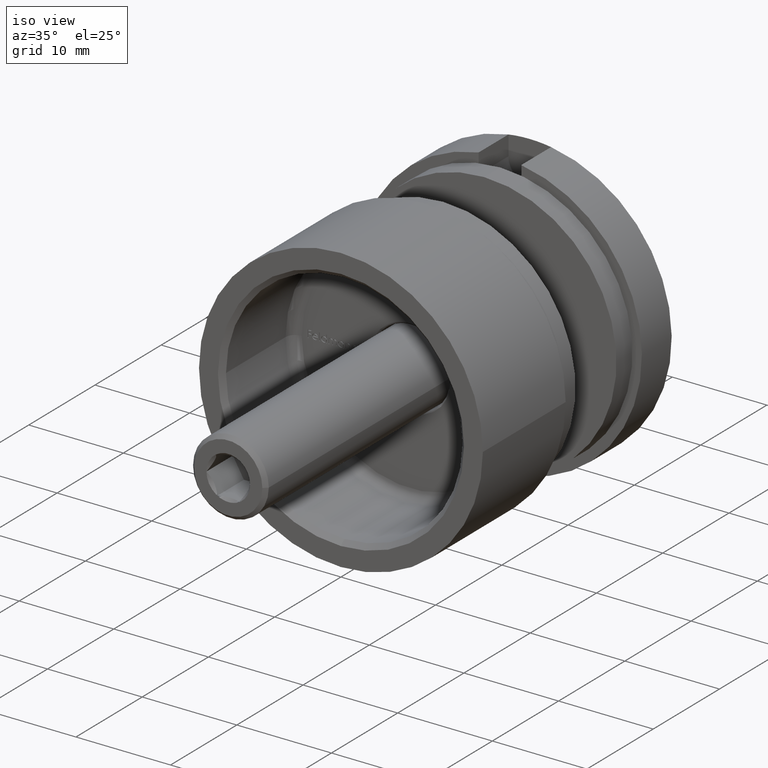
[diagram: clean part render]
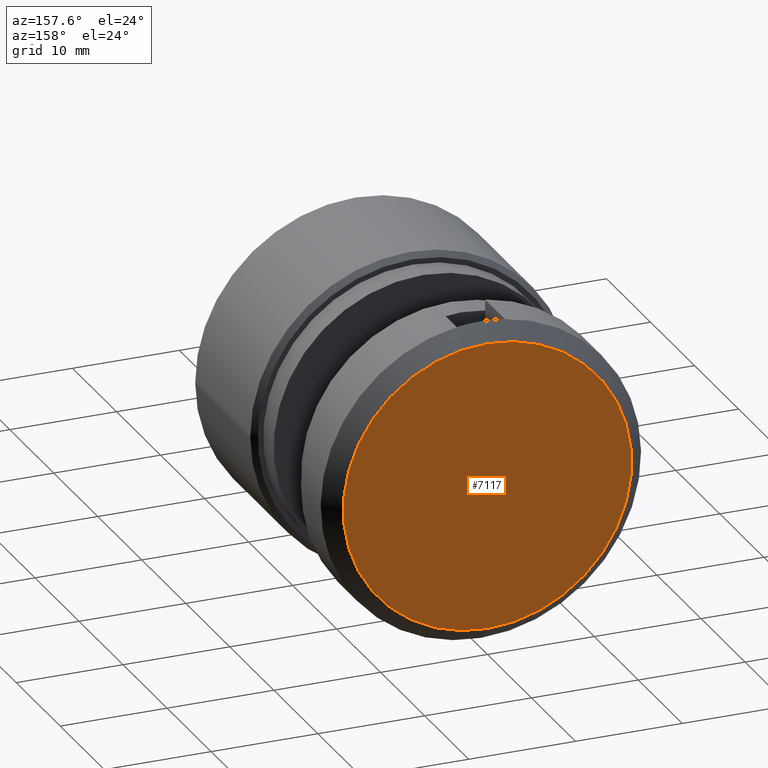
[diagram: tour spotlight — one face highlighted and labeled with its STEP entity id]
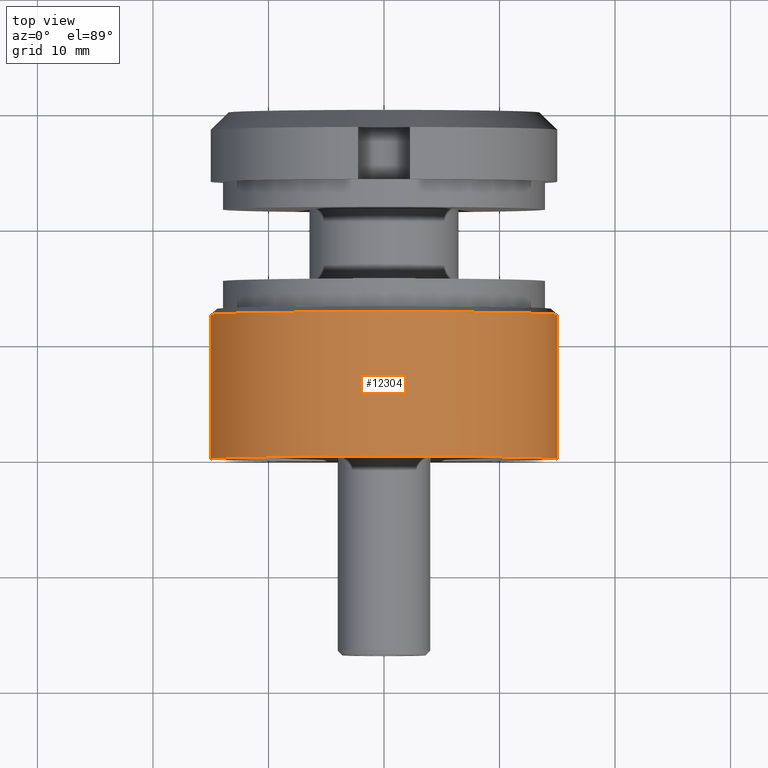
[diagram: tour spotlight — one face highlighted and labeled with its STEP entity id]
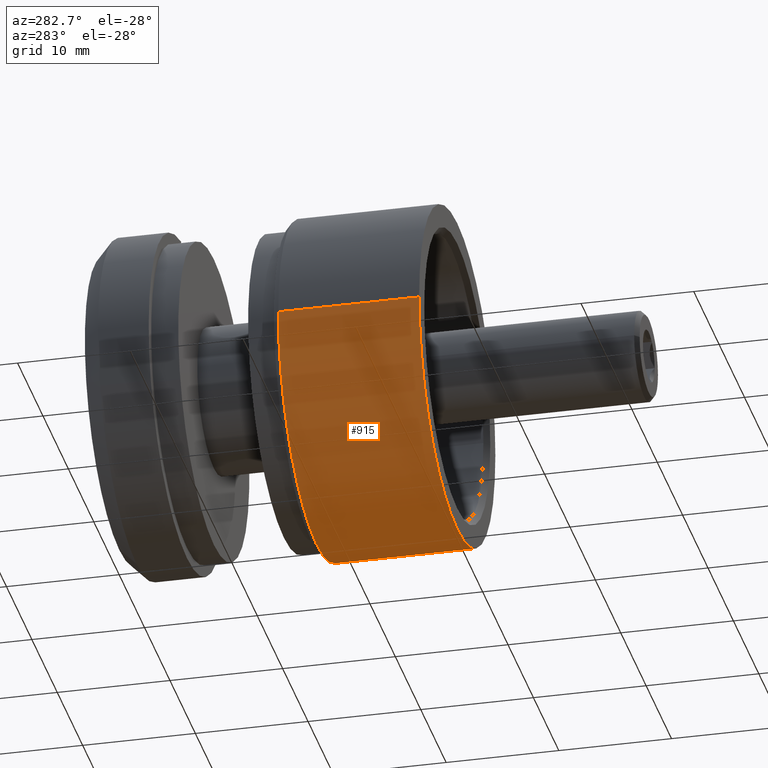
[diagram: tour spotlight — one face highlighted and labeled with its STEP entity id]
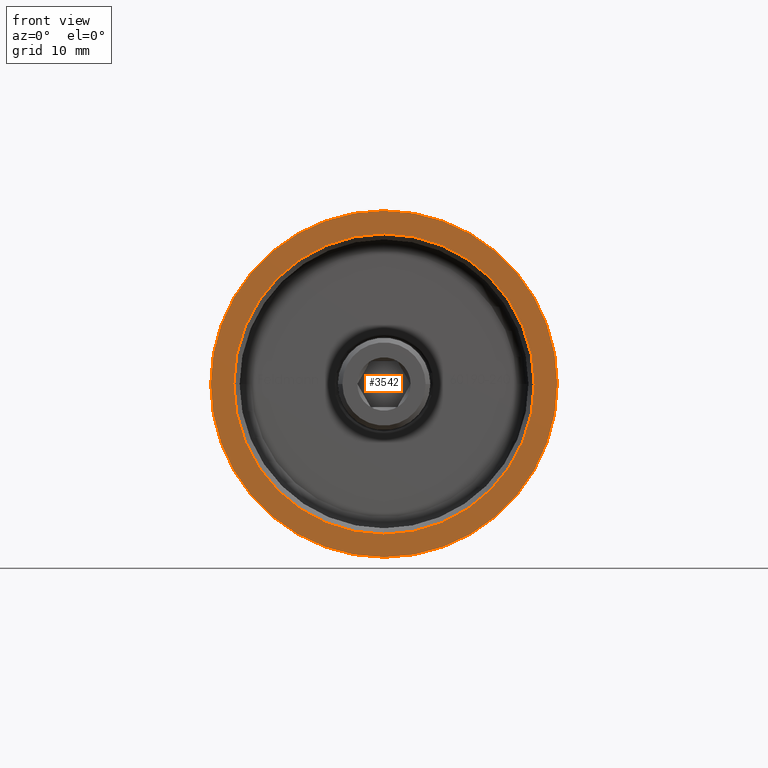
[diagram: tour spotlight — one face highlighted and labeled with its STEP entity id]
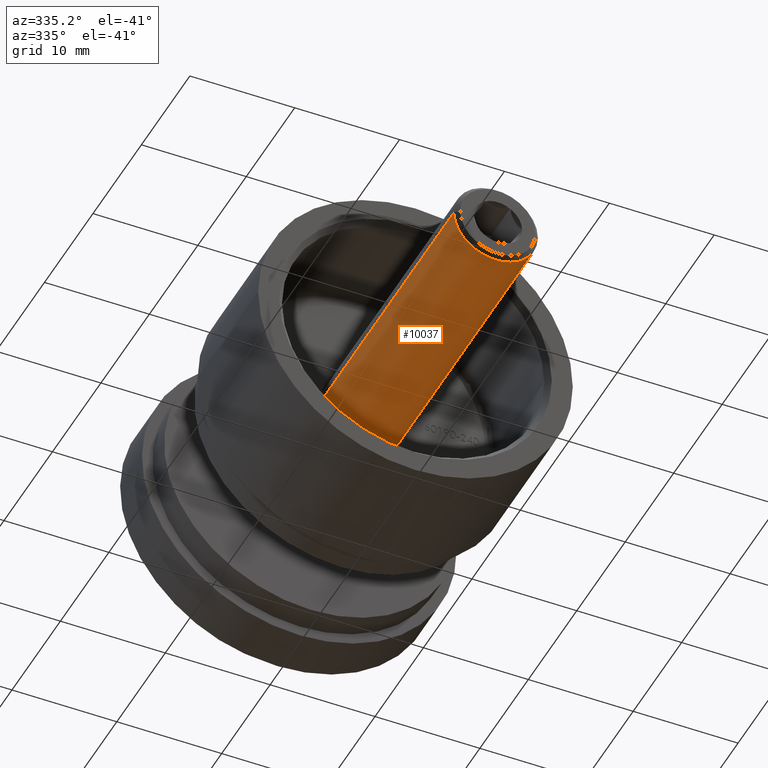
[diagram: tour spotlight — one face highlighted and labeled with its STEP entity id]
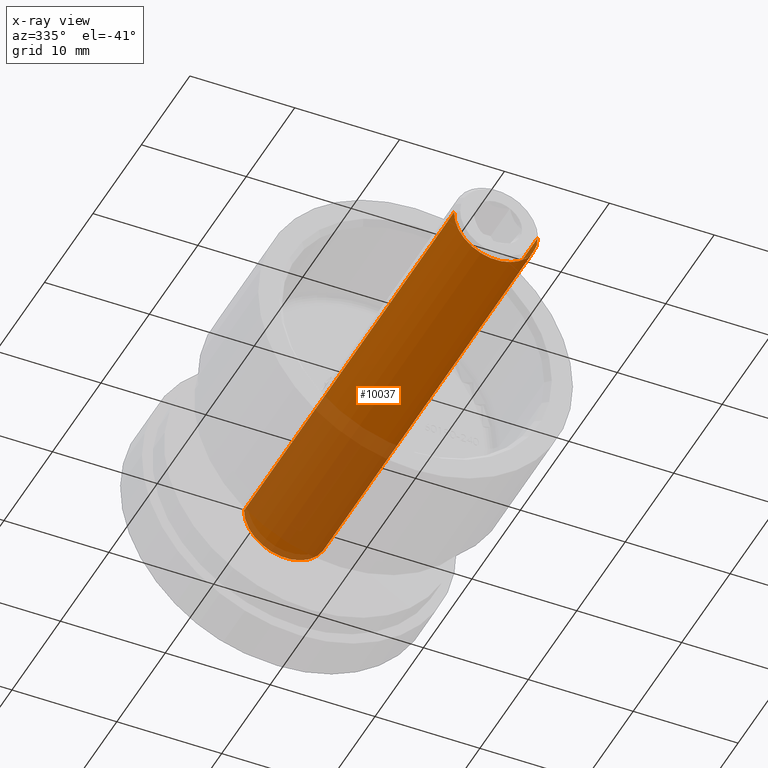
[diagram: x-ray of the same camera — body ghosted, this tour face saturated]
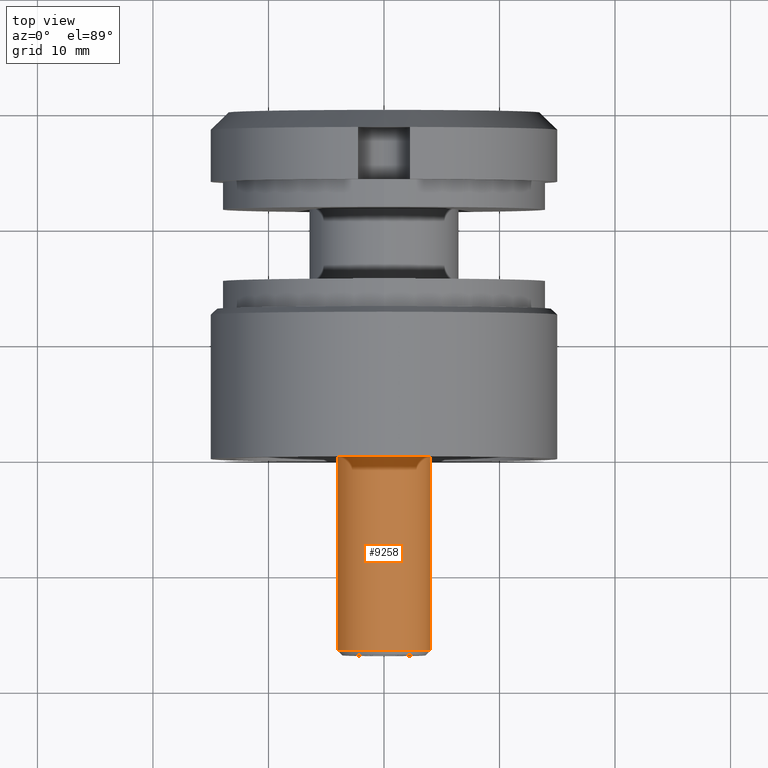
[diagram: tour spotlight — one face highlighted and labeled with its STEP entity id]
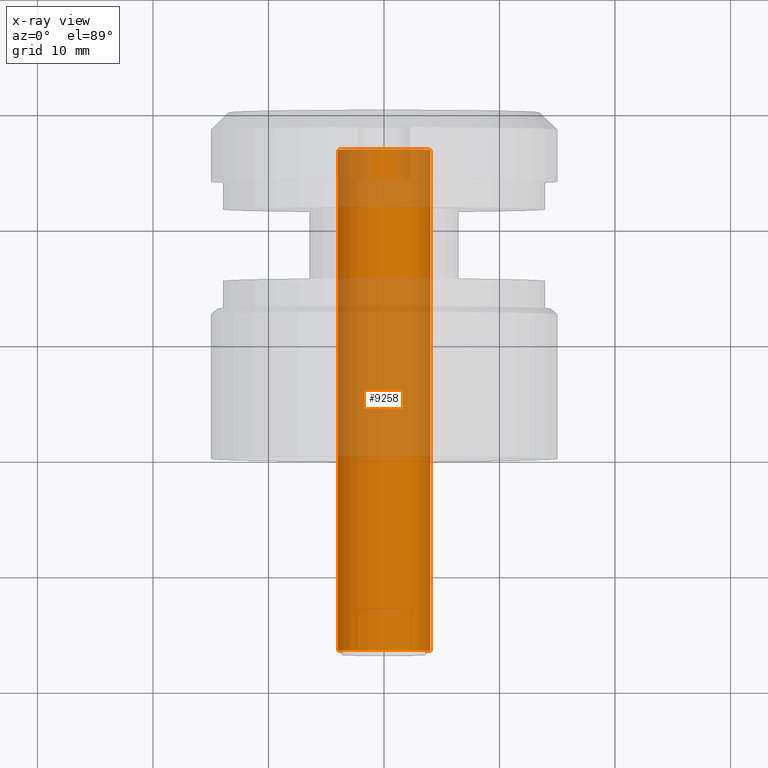
[diagram: x-ray of the same camera — body ghosted, this tour face saturated]
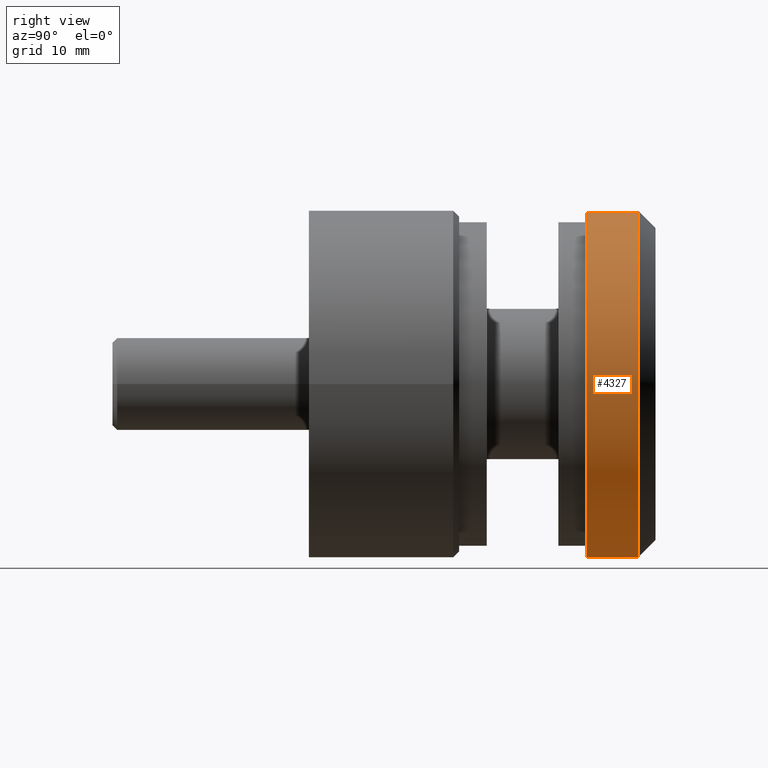
[diagram: tour spotlight — one face highlighted and labeled with its STEP entity id]
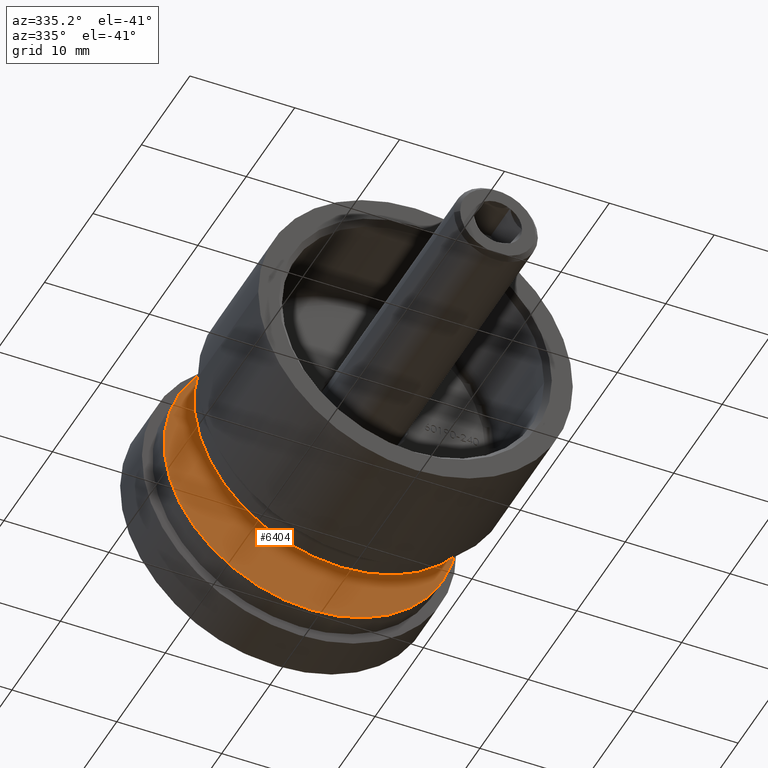
[diagram: tour spotlight — one face highlighted and labeled with its STEP entity id]
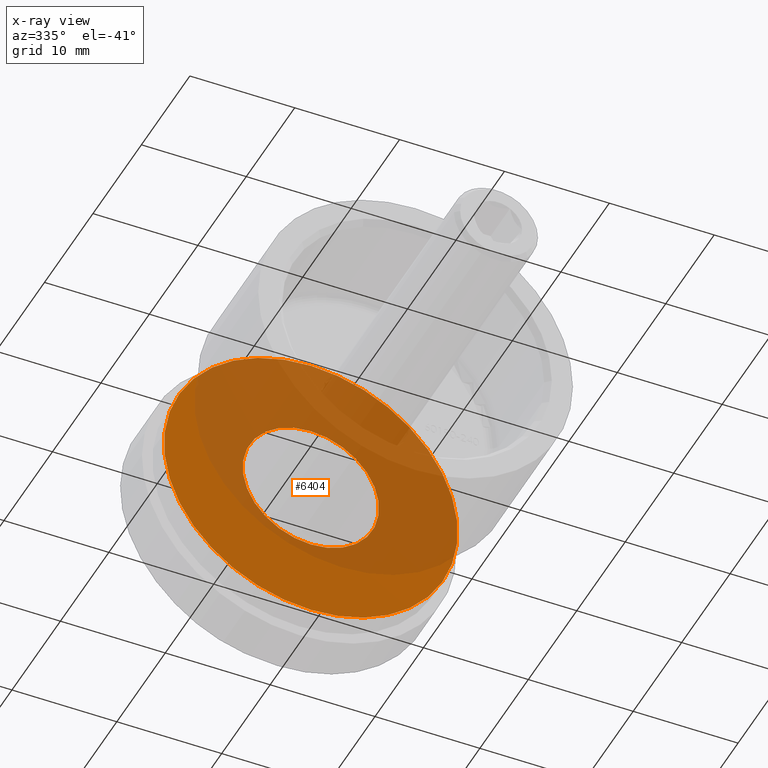
[diagram: x-ray of the same camera — body ghosted, this tour face saturated]
A machine part: a face-by-face anatomy tour. The part has 304 B-rep faces; the first image is the clean iso view, then the 8 largest visible faces are spotlighted one at a time (largest first), each with its STEP entity span.

Face 1 — auxiliary view, entity #7117. In plain terms, the highlighted planar face has unit normal (0, 1, 0).
Definition (entity closure, byte-faithful):
#291 = CARTESIAN_POINT ( 'NONE',  ( 0.000000000000000000, 11.00000000000000000, 0.000000000000000000 ) ) ;
#369 = CARTESIAN_POINT ( 'NONE',  ( 0.000000000000000000, 11.00000000000000000, -13.50000000000000000 ) ) ;
#1439 = DIRECTION ( 'NONE',  ( 0.000000000000000000, 0.000000000000000000, -1.000000000000000000 ) ) ;
#1816 = DIRECTION ( 'NONE',  ( 0.000000000000000000, 0.000000000000000000, -1.000000000000000000 ) ) ;
#1967 = ORIENTED_EDGE ( 'NONE', *, *, #12485, .F. ) ;
#2541 = AXIS2_PLACEMENT_3D ( 'NONE', #3973, #11365, #10179 ) ;
#2744 = DIRECTION ( 'NONE',  ( -0.000000000000000000, -1.000000000000000000, -0.000000000000000000 ) ) ;
#3588 = FACE_OUTER_BOUND ( 'NONE', #8136, .T. ) ;
#3737 = EDGE_CURVE ( 'NONE', #9612, #15301, #9376, .T. ) ;
#3973 = CARTESIAN_POINT ( 'NONE',  ( 0.000000000000000000, 11.00000000000000000, 0.000000000000000000 ) ) ;
#5408 = DIRECTION ( 'NONE',  ( -0.000000000000000000, -1.000000000000000000, -0.000000000000000000 ) ) ;
#5812 = AXIS2_PLACEMENT_3D ( 'NONE', #9158, #5408, #1816 ) ;
#5973 = AXIS2_PLACEMENT_3D ( 'NONE', #291, #2744, #1439 ) ;
#7117 = ADVANCED_FACE ( 'NONE', ( #3588 ), #8944, .T. ) ;
#7384 = ORIENTED_EDGE ( 'NONE', *, *, #3737, .F. ) ;
#8136 = EDGE_LOOP ( 'NONE', ( #7384, #1967 ) ) ;
#8944 = PLANE ( 'NONE',  #2541 ) ;
#9158 = CARTESIAN_POINT ( 'NONE',  ( 0.000000000000000000, 11.00000000000000000, 0.000000000000000000 ) ) ;
#9197 = CARTESIAN_POINT ( 'NONE',  ( 1.745121688784978228E-15, 11.00000000000000000, 13.50000000000000000 ) ) ;
#9376 = CIRCLE ( 'NONE', #5973, 13.50000000000000000 ) ;
#9612 = VERTEX_POINT ( 'NONE', #369 ) ;
#10179 = DIRECTION ( 'NONE',  ( 0.000000000000000000, -0.000000000000000000, 1.000000000000000000 ) ) ;
#11365 = DIRECTION ( 'NONE',  ( 0.000000000000000000, 1.000000000000000000, 0.000000000000000000 ) ) ;
#12485 = EDGE_CURVE ( 'NONE', #15301, #9612, #12567, .T. ) ;
#12567 = CIRCLE ( 'NONE', #5812, 13.50000000000000000 ) ;
#15301 = VERTEX_POINT ( 'NONE', #9197 ) ;

Face 2 — top view, entity #12304. In plain terms, the highlighted cylindrical surface (partial cylindrical patch) has radius 15 mm, axis along (-0, -1, -0).
Definition (entity closure, byte-faithful):
#44 = DIRECTION ( 'NONE',  ( 1.000000000000000000, 0.000000000000000000, 0.000000000000000000 ) ) ;
#145 = CARTESIAN_POINT ( 'NONE',  ( 15.00000000000000000, 12.50000000000000000, 0.000000000000000000 ) ) ;
#734 = ORIENTED_EDGE ( 'NONE', *, *, #10025, .T. ) ;
#1313 = VERTEX_POINT ( 'NONE', #145 ) ;
#1327 = ORIENTED_EDGE ( 'NONE', *, *, #15333, .F. ) ;
#1442 = CARTESIAN_POINT ( 'NONE',  ( -2.571758278209441267E-15, 12.50000000000000000, 0.000000000000000000 ) ) ;
#1489 = ORIENTED_EDGE ( 'NONE', *, *, #3445, .T. ) ;
#1516 = LINE ( 'NONE', #4039, #8699 ) ;
#1662 = EDGE_LOOP ( 'NONE', ( #1489, #734, #14394, #1327, #6943 ) ) ;
#1948 = DIRECTION ( 'NONE',  ( -1.650797095189058802E-31, -1.000000000000000000, -0.000000000000000000 ) ) ;
#2748 = DIRECTION ( 'NONE',  ( 0.000000000000000000, 0.000000000000000000, 1.000000000000000000 ) ) ;
#3445 = EDGE_CURVE ( 'NONE', #1313, #10052, #6715, .T. ) ;
#3571 = AXIS2_PLACEMENT_3D ( 'NONE', #10852, #12131, #44 ) ;
#3888 = VERTEX_POINT ( 'NONE', #12613 ) ;
#4039 = CARTESIAN_POINT ( 'NONE',  ( -15.00000000000000355, 10.49999999999999822, 1.836970198721029983E-15 ) ) ;
#4422 = CARTESIAN_POINT ( 'NONE',  ( -15.00000000000000355, 12.50000000000000000, 1.836970198721029983E-15 ) ) ;
#5162 = CYLINDRICAL_SURFACE ( 'NONE', #3571, 15.00000000000000178 ) ;
#6715 = CIRCLE ( 'NONE', #8885, 15.00000000000000178 ) ;
#6833 = DIRECTION ( 'NONE',  ( 1.000000000000000000, -1.650797095189058583E-31, 0.000000000000000000 ) ) ;
#6883 = CARTESIAN_POINT ( 'NONE',  ( -2.571758278209443239E-15, 0.000000000000000000, 0.000000000000000000 ) ) ;
#6943 = ORIENTED_EDGE ( 'NONE', *, *, #7573, .F. ) ;
#7407 = CARTESIAN_POINT ( 'NONE',  ( 15.00000000000000000, -2.476195642783588203E-30, 0.000000000000000000 ) ) ;
#7573 = EDGE_CURVE ( 'NONE', #1313, #12436, #9965, .T. ) ;
#7683 = VECTOR ( 'NONE', #1948, 1000.000000000000000 ) ;
#7808 = FACE_OUTER_BOUND ( 'NONE', #1662, .T. ) ;
#8337 = AXIS2_PLACEMENT_3D ( 'NONE', #1442, #8771, #2748 ) ;
#8699 = VECTOR ( 'NONE', #8912, 1000.000000000000000 ) ;
#8771 = DIRECTION ( 'NONE',  ( -0.000000000000000000, -1.000000000000000000, -0.000000000000000000 ) ) ;
#8885 = AXIS2_PLACEMENT_3D ( 'NONE', #10058, #14956, #8890 ) ;
#8890 = DIRECTION ( 'NONE',  ( -8.881784197001251337E-16, 0.000000000000000000, 1.000000000000000000 ) ) ;
#8912 = DIRECTION ( 'NONE',  ( -1.650797095189058802E-31, -1.000000000000000000, -0.000000000000000000 ) ) ;
#9300 = CIRCLE ( 'NONE', #8337, 15.00000000000000178 ) ;
#9965 = LINE ( 'NONE', #11623, #7683 ) ;
#10025 = EDGE_CURVE ( 'NONE', #10052, #12708, #9300, .T. ) ;
#10052 = VERTEX_POINT ( 'NONE', #14686 ) ;
#10058 = CARTESIAN_POINT ( 'NONE',  ( -2.571758278209441267E-15, 12.50000000000000000, 0.000000000000000000 ) ) ;
#10852 = CARTESIAN_POINT ( 'NONE',  ( -2.571758278209441661E-15, 10.49999999999999822, 0.000000000000000000 ) ) ;
#10989 = EDGE_CURVE ( 'NONE', #12708, #3888, #1516, .T. ) ;
#11623 = CARTESIAN_POINT ( 'NONE',  ( 15.00000000000000000, 10.49999999999999822, 0.000000000000000000 ) ) ;
#12131 = DIRECTION ( 'NONE',  ( -1.650797095189058802E-31, -1.000000000000000000, -0.000000000000000000 ) ) ;
#12304 = ADVANCED_FACE ( 'NONE', ( #7808 ), #5162, .T. ) ;
#12436 = VERTEX_POINT ( 'NONE', #7407 ) ;
#12613 = CARTESIAN_POINT ( 'NONE',  ( -15.00000000000000355, 2.476195642783588203E-30, 1.836970198721029983E-15 ) ) ;
#12708 = VERTEX_POINT ( 'NONE', #4422 ) ;
#14394 = ORIENTED_EDGE ( 'NONE', *, *, #10989, .T. ) ;
#14448 = CIRCLE ( 'NONE', #14744, 15.00000000000000178 ) ;
#14686 = CARTESIAN_POINT ( 'NONE',  ( -7.347880794884114806E-16, 12.50000000000000000, 15.00000000000000178 ) ) ;
#14744 = AXIS2_PLACEMENT_3D ( 'NONE', #6883, #15271, #6833 ) ;
#14956 = DIRECTION ( 'NONE',  ( -0.000000000000000000, -1.000000000000000000, -0.000000000000000000 ) ) ;
#15271 = DIRECTION ( 'NONE',  ( -1.650797095189058802E-31, -1.000000000000000000, -0.000000000000000000 ) ) ;
#15333 = EDGE_CURVE ( 'NONE', #12436, #3888, #14448, .T. ) ;

Face 3 — auxiliary view, entity #915. In plain terms, the highlighted cylindrical surface (partial cylindrical patch) has radius 15 mm, axis along (-0, -1, -0).
Definition (entity closure, byte-faithful):
#145 = CARTESIAN_POINT ( 'NONE',  ( 15.00000000000000000, 12.50000000000000000, 0.000000000000000000 ) ) ;
#915 = ADVANCED_FACE ( 'NONE', ( #3546 ), #10587, .T. ) ;
#1313 = VERTEX_POINT ( 'NONE', #145 ) ;
#1440 = CARTESIAN_POINT ( 'NONE',  ( -2.571758278209441267E-15, 12.50000000000000000, 0.000000000000000000 ) ) ;
#1516 = LINE ( 'NONE', #4039, #8699 ) ;
#1948 = DIRECTION ( 'NONE',  ( -1.650797095189058802E-31, -1.000000000000000000, -0.000000000000000000 ) ) ;
#2849 = CIRCLE ( 'NONE', #5490, 15.00000000000000178 ) ;
#3546 = FACE_OUTER_BOUND ( 'NONE', #13096, .T. ) ;
#3580 = ORIENTED_EDGE ( 'NONE', *, *, #10989, .F. ) ;
#3888 = VERTEX_POINT ( 'NONE', #12613 ) ;
#4039 = CARTESIAN_POINT ( 'NONE',  ( -15.00000000000000355, 10.49999999999999822, 1.836970198721029983E-15 ) ) ;
#4422 = CARTESIAN_POINT ( 'NONE',  ( -15.00000000000000355, 12.50000000000000000, 1.836970198721029983E-15 ) ) ;
#4505 = VERTEX_POINT ( 'NONE', #5909 ) ;
#4677 = AXIS2_PLACEMENT_3D ( 'NONE', #10538, #12930, #10419 ) ;
#5169 = DIRECTION ( 'NONE',  ( -0.000000000000000000, -1.000000000000000000, -0.000000000000000000 ) ) ;
#5490 = AXIS2_PLACEMENT_3D ( 'NONE', #1440, #5169, #12501 ) ;
#5909 = CARTESIAN_POINT ( 'NONE',  ( -2.571758278209441267E-15, 12.50000000000000000, -15.00000000000000178 ) ) ;
#7309 = DIRECTION ( 'NONE',  ( -0.000000000000000000, -1.000000000000000000, -0.000000000000000000 ) ) ;
#7407 = CARTESIAN_POINT ( 'NONE',  ( 15.00000000000000000, -2.476195642783588203E-30, 0.000000000000000000 ) ) ;
#7573 = EDGE_CURVE ( 'NONE', #1313, #12436, #9965, .T. ) ;
#7683 = VECTOR ( 'NONE', #1948, 1000.000000000000000 ) ;
#7815 = CIRCLE ( 'NONE', #4677, 15.00000000000000178 ) ;
#7971 = AXIS2_PLACEMENT_3D ( 'NONE', #15646, #13311, #8459 ) ;
#8260 = EDGE_CURVE ( 'NONE', #3888, #12436, #7815, .T. ) ;
#8459 = DIRECTION ( 'NONE',  ( 1.000000000000000000, 0.000000000000000000, 0.000000000000000000 ) ) ;
#8699 = VECTOR ( 'NONE', #8912, 1000.000000000000000 ) ;
#8727 = AXIS2_PLACEMENT_3D ( 'NONE', #13443, #7309, #10957 ) ;
#8912 = DIRECTION ( 'NONE',  ( -1.650797095189058802E-31, -1.000000000000000000, -0.000000000000000000 ) ) ;
#9965 = LINE ( 'NONE', #11623, #7683 ) ;
#10419 = DIRECTION ( 'NONE',  ( 1.000000000000000000, -1.650797095189058583E-31, 0.000000000000000000 ) ) ;
#10538 = CARTESIAN_POINT ( 'NONE',  ( -2.571758278209443239E-15, 0.000000000000000000, 0.000000000000000000 ) ) ;
#10587 = CYLINDRICAL_SURFACE ( 'NONE', #7971, 15.00000000000000178 ) ;
#10860 = CIRCLE ( 'NONE', #8727, 15.00000000000000178 ) ;
#10957 = DIRECTION ( 'NONE',  ( 0.000000000000000000, 0.000000000000000000, 1.000000000000000000 ) ) ;
#10989 = EDGE_CURVE ( 'NONE', #12708, #3888, #1516, .T. ) ;
#11350 = ORIENTED_EDGE ( 'NONE', *, *, #8260, .F. ) ;
#11623 = CARTESIAN_POINT ( 'NONE',  ( 15.00000000000000000, 10.49999999999999822, 0.000000000000000000 ) ) ;
#11990 = ORIENTED_EDGE ( 'NONE', *, *, #7573, .T. ) ;
#12436 = VERTEX_POINT ( 'NONE', #7407 ) ;
#12501 = DIRECTION ( 'NONE',  ( 0.000000000000000000, 0.000000000000000000, 1.000000000000000000 ) ) ;
#12613 = CARTESIAN_POINT ( 'NONE',  ( -15.00000000000000355, 2.476195642783588203E-30, 1.836970198721029983E-15 ) ) ;
#12708 = VERTEX_POINT ( 'NONE', #4422 ) ;
#12796 = ORIENTED_EDGE ( 'NONE', *, *, #14421, .T. ) ;
#12930 = DIRECTION ( 'NONE',  ( -1.650797095189058802E-31, -1.000000000000000000, -0.000000000000000000 ) ) ;
#13096 = EDGE_LOOP ( 'NONE', ( #3580, #15100, #12796, #11990, #11350 ) ) ;
#13311 = DIRECTION ( 'NONE',  ( -1.650797095189058802E-31, -1.000000000000000000, -0.000000000000000000 ) ) ;
#13443 = CARTESIAN_POINT ( 'NONE',  ( -2.571758278209441267E-15, 12.50000000000000000, 0.000000000000000000 ) ) ;
#14421 = EDGE_CURVE ( 'NONE', #4505, #1313, #2849, .T. ) ;
#15100 = ORIENTED_EDGE ( 'NONE', *, *, #15546, .T. ) ;
#15546 = EDGE_CURVE ( 'NONE', #12708, #4505, #10860, .T. ) ;
#15646 = CARTESIAN_POINT ( 'NONE',  ( -2.571758278209441661E-15, 10.49999999999999822, 0.000000000000000000 ) ) ;

Face 4 — front view, entity #3542. In plain terms, the highlighted planar face has unit normal (-0, -1, 0).
Definition (entity closure, byte-faithful):
#971 = PLANE ( 'NONE',  #10001 ) ;
#1081 = DIRECTION ( 'NONE',  ( -1.650797095189058802E-31, -1.000000000000000000, 0.000000000000000000 ) ) ;
#3507 = DIRECTION ( 'NONE',  ( 1.000000000000000000, -1.650797095189058802E-31, 0.000000000000000000 ) ) ;
#3542 = ADVANCED_FACE ( 'NONE', ( #11485, #7095 ), #971, .T. ) ;
#3888 = VERTEX_POINT ( 'NONE', #12613 ) ;
#4677 = AXIS2_PLACEMENT_3D ( 'NONE', #10538, #12930, #10419 ) ;
#5664 = DIRECTION ( 'NONE',  ( 1.650797095189058802E-31, 1.000000000000000000, 0.000000000000000000 ) ) ;
#6016 = AXIS2_PLACEMENT_3D ( 'NONE', #10668, #5664, #15491 ) ;
#6549 = CARTESIAN_POINT ( 'NONE',  ( -2.571758278209443239E-15, -1.530808498934169384E-16, 0.000000000000000000 ) ) ;
#6833 = DIRECTION ( 'NONE',  ( 1.000000000000000000, -1.650797095189058583E-31, 0.000000000000000000 ) ) ;
#6883 = CARTESIAN_POINT ( 'NONE',  ( -2.571758278209443239E-15, 0.000000000000000000, 0.000000000000000000 ) ) ;
#7086 = CARTESIAN_POINT ( 'NONE',  ( -2.571758278209443239E-15, -1.530808498934169384E-16, -13.00000000000001066 ) ) ;
#7095 = FACE_OUTER_BOUND ( 'NONE', #10605, .T. ) ;
#7407 = CARTESIAN_POINT ( 'NONE',  ( 15.00000000000000000, -2.476195642783588203E-30, 0.000000000000000000 ) ) ;
#7486 = VERTEX_POINT ( 'NONE', #12359 ) ;
#7487 = EDGE_CURVE ( 'NONE', #7486, #9449, #8461, .T. ) ;
#7815 = CIRCLE ( 'NONE', #4677, 15.00000000000000178 ) ;
#8260 = EDGE_CURVE ( 'NONE', #3888, #12436, #7815, .T. ) ;
#8461 = CIRCLE ( 'NONE', #10350, 13.00000000000001066 ) ;
#9432 = CARTESIAN_POINT ( 'NONE',  ( 15.00000000000000000, -1.530808498934194036E-16, 0.000000000000000000 ) ) ;
#9449 = VERTEX_POINT ( 'NONE', #7086 ) ;
#10001 = AXIS2_PLACEMENT_3D ( 'NONE', #9432, #1081, #3507 ) ;
#10350 = AXIS2_PLACEMENT_3D ( 'NONE', #6549, #15045, #13771 ) ;
#10419 = DIRECTION ( 'NONE',  ( 1.000000000000000000, -1.650797095189058583E-31, 0.000000000000000000 ) ) ;
#10538 = CARTESIAN_POINT ( 'NONE',  ( -2.571758278209443239E-15, 0.000000000000000000, 0.000000000000000000 ) ) ;
#10605 = EDGE_LOOP ( 'NONE', ( #14487, #10976 ) ) ;
#10668 = CARTESIAN_POINT ( 'NONE',  ( -2.571758278209443239E-15, -1.530808498934169384E-16, 0.000000000000000000 ) ) ;
#10847 = ORIENTED_EDGE ( 'NONE', *, *, #15237, .T. ) ;
#10976 = ORIENTED_EDGE ( 'NONE', *, *, #8260, .T. ) ;
#11485 = FACE_BOUND ( 'NONE', #14404, .T. ) ;
#12359 = CARTESIAN_POINT ( 'NONE',  ( -9.797174393178827630E-16, -1.530808498934169384E-16, 13.00000000000001066 ) ) ;
#12436 = VERTEX_POINT ( 'NONE', #7407 ) ;
#12613 = CARTESIAN_POINT ( 'NONE',  ( -15.00000000000000355, 2.476195642783588203E-30, 1.836970198721029983E-15 ) ) ;
#12930 = DIRECTION ( 'NONE',  ( -1.650797095189058802E-31, -1.000000000000000000, -0.000000000000000000 ) ) ;
#13771 = DIRECTION ( 'NONE',  ( 1.000000000000000000, -1.648151587023690806E-31, 0.000000000000000000 ) ) ;
#14404 = EDGE_LOOP ( 'NONE', ( #10847, #14422 ) ) ;
#14422 = ORIENTED_EDGE ( 'NONE', *, *, #7487, .T. ) ;
#14448 = CIRCLE ( 'NONE', #14744, 15.00000000000000178 ) ;
#14487 = ORIENTED_EDGE ( 'NONE', *, *, #15333, .T. ) ;
#14744 = AXIS2_PLACEMENT_3D ( 'NONE', #6883, #15271, #6833 ) ;
#14823 = CIRCLE ( 'NONE', #6016, 13.00000000000001066 ) ;
#15045 = DIRECTION ( 'NONE',  ( 1.650797095189058802E-31, 1.000000000000000000, 0.000000000000000000 ) ) ;
#15237 = EDGE_CURVE ( 'NONE', #9449, #7486, #14823, .T. ) ;
#15271 = DIRECTION ( 'NONE',  ( -1.650797095189058802E-31, -1.000000000000000000, -0.000000000000000000 ) ) ;
#15333 = EDGE_CURVE ( 'NONE', #12436, #3888, #14448, .T. ) ;
#15491 = DIRECTION ( 'NONE',  ( 1.000000000000000000, -1.648151587023690806E-31, 0.000000000000000000 ) ) ;

Face 5 — auxiliary view, entity #10037. An x-ray twin of the same camera follows (body ghosted, this face saturated) — the face is partly hidden behind the body. In plain terms, the highlighted cylindrical surface (partial cylindrical patch) has radius 4 mm, axis along (0, -1, 0).
Definition (entity closure, byte-faithful):
#244 = CARTESIAN_POINT ( 'NONE',  ( 4.000000000000000000, 0.000000000000000000, -43.75000000000000711 ) ) ;
#497 = AXIS2_PLACEMENT_3D ( 'NONE', #14480, #1142, #4738 ) ;
#1142 = DIRECTION ( 'NONE',  ( -0.000000000000000000, -0.000000000000000000, 1.000000000000000000 ) ) ;
#1206 = ORIENTED_EDGE ( 'NONE', *, *, #2629, .T. ) ;
#2023 = EDGE_CURVE ( 'NONE', #11258, #11223, #2160, .T. ) ;
#2160 = LINE ( 'NONE', #14299, #14837 ) ;
#2338 = VECTOR ( 'NONE', #12055, 1000.000000000000000 ) ;
#2625 = ORIENTED_EDGE ( 'NONE', *, *, #9823, .T. ) ;
#2629 = EDGE_CURVE ( 'NONE', #7428, #8122, #12384, .T. ) ;
#2793 = ORIENTED_EDGE ( 'NONE', *, *, #2023, .F. ) ;
#2929 = AXIS2_PLACEMENT_3D ( 'NONE', #14886, #7446, #12360 ) ;
#3249 = CYLINDRICAL_SURFACE ( 'NONE', #2929, 4.000000000000000000 ) ;
#3790 = CIRCLE ( 'NONE', #497, 4.000000000000000000 ) ;
#4738 = DIRECTION ( 'NONE',  ( 1.000000000000000000, 0.000000000000000000, 0.000000000000000000 ) ) ;
#5533 = CARTESIAN_POINT ( 'NONE',  ( -4.000000000000000000, 4.898587196589412829E-16, -43.75000000000000711 ) ) ;
#6539 = CARTESIAN_POINT ( 'NONE',  ( 0.000000000000000000, 0.000000000000000000, -0.4000000000000019651 ) ) ;
#7140 = CARTESIAN_POINT ( 'NONE',  ( 4.000000000000000000, 0.000000000000000000, 0.000000000000000000 ) ) ;
#7428 = VERTEX_POINT ( 'NONE', #244 ) ;
#7446 = DIRECTION ( 'NONE',  ( -0.000000000000000000, -0.000000000000000000, 1.000000000000000000 ) ) ;
#8022 = AXIS2_PLACEMENT_3D ( 'NONE', #6539, #12542, #12443 ) ;
#8122 = VERTEX_POINT ( 'NONE', #12294 ) ;
#8314 = CIRCLE ( 'NONE', #8022, 4.000000000000000000 ) ;
#9823 = EDGE_CURVE ( 'NONE', #11258, #7428, #3790, .T. ) ;
#10037 = ADVANCED_FACE ( 'NONE', ( #15584 ), #3249, .T. ) ;
#11140 = EDGE_CURVE ( 'NONE', #8122, #11223, #8314, .T. ) ;
#11223 = VERTEX_POINT ( 'NONE', #13927 ) ;
#11258 = VERTEX_POINT ( 'NONE', #5533 ) ;
#11777 = DIRECTION ( 'NONE',  ( -0.000000000000000000, -0.000000000000000000, 1.000000000000000000 ) ) ;
#12055 = DIRECTION ( 'NONE',  ( -0.000000000000000000, -0.000000000000000000, 1.000000000000000000 ) ) ;
#12294 = CARTESIAN_POINT ( 'NONE',  ( 4.000000000000000000, 0.000000000000000000, -0.4000000000000019651 ) ) ;
#12360 = DIRECTION ( 'NONE',  ( 1.000000000000000000, 0.000000000000000000, 0.000000000000000000 ) ) ;
#12384 = LINE ( 'NONE', #7140, #2338 ) ;
#12443 = DIRECTION ( 'NONE',  ( -1.000000000000000000, 0.000000000000000000, 0.000000000000000000 ) ) ;
#12542 = DIRECTION ( 'NONE',  ( 0.000000000000000000, 0.000000000000000000, -1.000000000000000000 ) ) ;
#13224 = EDGE_LOOP ( 'NONE', ( #2793, #2625, #1206, #14499 ) ) ;
#13927 = CARTESIAN_POINT ( 'NONE',  ( -4.000000000000000000, 4.898587196589412829E-16, -0.4000000000000019651 ) ) ;
#14299 = CARTESIAN_POINT ( 'NONE',  ( -4.000000000000000000, 4.898587196589412829E-16, 0.000000000000000000 ) ) ;
#14480 = CARTESIAN_POINT ( 'NONE',  ( 0.000000000000000000, 0.000000000000000000, -43.75000000000000711 ) ) ;
#14499 = ORIENTED_EDGE ( 'NONE', *, *, #11140, .T. ) ;
#14837 = VECTOR ( 'NONE', #11777, 1000.000000000000000 ) ;
#14886 = CARTESIAN_POINT ( 'NONE',  ( 0.000000000000000000, 0.000000000000000000, 0.000000000000000000 ) ) ;
#15584 = FACE_OUTER_BOUND ( 'NONE', #13224, .T. ) ;

Face 6 — top view, entity #9258. An x-ray twin of the same camera follows (body ghosted, this face saturated) — the face is partly hidden behind the body. In plain terms, the highlighted cylindrical surface (partial cylindrical patch) has radius 4 mm, axis along (0, -1, 0).
Definition (entity closure, byte-faithful):
#31 = DIRECTION ( 'NONE',  ( 0.000000000000000000, 0.000000000000000000, -1.000000000000000000 ) ) ;
#244 = CARTESIAN_POINT ( 'NONE',  ( 4.000000000000000000, 0.000000000000000000, -43.75000000000000711 ) ) ;
#2023 = EDGE_CURVE ( 'NONE', #11258, #11223, #2160, .T. ) ;
#2160 = LINE ( 'NONE', #14299, #14837 ) ;
#2338 = VECTOR ( 'NONE', #12055, 1000.000000000000000 ) ;
#2629 = EDGE_CURVE ( 'NONE', #7428, #8122, #12384, .T. ) ;
#2632 = DIRECTION ( 'NONE',  ( 1.000000000000000000, 0.000000000000000000, 0.000000000000000000 ) ) ;
#5396 = DIRECTION ( 'NONE',  ( 1.000000000000000000, 0.000000000000000000, 0.000000000000000000 ) ) ;
#5533 = CARTESIAN_POINT ( 'NONE',  ( -4.000000000000000000, 4.898587196589412829E-16, -43.75000000000000711 ) ) ;
#5581 = FACE_OUTER_BOUND ( 'NONE', #6175, .T. ) ;
#5638 = EDGE_CURVE ( 'NONE', #11223, #8122, #10385, .T. ) ;
#6046 = DIRECTION ( 'NONE',  ( -1.000000000000000000, 0.000000000000000000, 0.000000000000000000 ) ) ;
#6175 = EDGE_LOOP ( 'NONE', ( #9355, #9792, #15359, #8111 ) ) ;
#6280 = DIRECTION ( 'NONE',  ( -0.000000000000000000, -0.000000000000000000, 1.000000000000000000 ) ) ;
#7140 = CARTESIAN_POINT ( 'NONE',  ( 4.000000000000000000, 0.000000000000000000, 0.000000000000000000 ) ) ;
#7428 = VERTEX_POINT ( 'NONE', #244 ) ;
#8111 = ORIENTED_EDGE ( 'NONE', *, *, #2629, .F. ) ;
#8122 = VERTEX_POINT ( 'NONE', #12294 ) ;
#8728 = CIRCLE ( 'NONE', #11192, 4.000000000000000000 ) ;
#9258 = ADVANCED_FACE ( 'NONE', ( #5581 ), #15056, .T. ) ;
#9355 = ORIENTED_EDGE ( 'NONE', *, *, #13984, .T. ) ;
#9792 = ORIENTED_EDGE ( 'NONE', *, *, #2023, .T. ) ;
#10249 = AXIS2_PLACEMENT_3D ( 'NONE', #11458, #12894, #5396 ) ;
#10385 = CIRCLE ( 'NONE', #12383, 4.000000000000000000 ) ;
#11011 = CARTESIAN_POINT ( 'NONE',  ( 0.000000000000000000, 0.000000000000000000, -43.75000000000000711 ) ) ;
#11192 = AXIS2_PLACEMENT_3D ( 'NONE', #11011, #6280, #2632 ) ;
#11223 = VERTEX_POINT ( 'NONE', #13927 ) ;
#11258 = VERTEX_POINT ( 'NONE', #5533 ) ;
#11458 = CARTESIAN_POINT ( 'NONE',  ( 0.000000000000000000, 0.000000000000000000, 0.000000000000000000 ) ) ;
#11777 = DIRECTION ( 'NONE',  ( -0.000000000000000000, -0.000000000000000000, 1.000000000000000000 ) ) ;
#12055 = DIRECTION ( 'NONE',  ( -0.000000000000000000, -0.000000000000000000, 1.000000000000000000 ) ) ;
#12294 = CARTESIAN_POINT ( 'NONE',  ( 4.000000000000000000, 0.000000000000000000, -0.4000000000000019651 ) ) ;
#12383 = AXIS2_PLACEMENT_3D ( 'NONE', #13326, #31, #6046 ) ;
#12384 = LINE ( 'NONE', #7140, #2338 ) ;
#12894 = DIRECTION ( 'NONE',  ( -0.000000000000000000, -0.000000000000000000, 1.000000000000000000 ) ) ;
#13326 = CARTESIAN_POINT ( 'NONE',  ( 0.000000000000000000, 0.000000000000000000, -0.4000000000000019651 ) ) ;
#13927 = CARTESIAN_POINT ( 'NONE',  ( -4.000000000000000000, 4.898587196589412829E-16, -0.4000000000000019651 ) ) ;
#13984 = EDGE_CURVE ( 'NONE', #7428, #11258, #8728, .T. ) ;
#14299 = CARTESIAN_POINT ( 'NONE',  ( -4.000000000000000000, 4.898587196589412829E-16, 0.000000000000000000 ) ) ;
#14837 = VECTOR ( 'NONE', #11777, 1000.000000000000000 ) ;
#15056 = CYLINDRICAL_SURFACE ( 'NONE', #10249, 4.000000000000000000 ) ;
#15359 = ORIENTED_EDGE ( 'NONE', *, *, #5638, .T. ) ;

Face 7 — right view, entity #4327. In plain terms, the highlighted cylindrical surface (partial cylindrical patch) has radius 15 mm, axis along (-0, -1, -0).
Definition (entity closure, byte-faithful):
#48 = CARTESIAN_POINT ( 'NONE',  ( 2.250000000000005773, 5.000000000000000888, 14.83028994996389116 ) ) ;
#1427 = EDGE_CURVE ( 'NONE', #10202, #7032, #12575, .T. ) ;
#1525 = DIRECTION ( 'NONE',  ( -0.000000000000000000, -1.000000000000000000, -0.000000000000000000 ) ) ;
#1591 = ORIENTED_EDGE ( 'NONE', *, *, #13542, .F. ) ;
#1643 = AXIS2_PLACEMENT_3D ( 'NONE', #14666, #3784, #4962 ) ;
#3004 = CARTESIAN_POINT ( 'NONE',  ( 2.250000000000005773, 9.500000000000001776, 14.83028994996389116 ) ) ;
#3032 = CIRCLE ( 'NONE', #7204, 15.00000000000000178 ) ;
#3417 = LINE ( 'NONE', #7691, #12706 ) ;
#3784 = DIRECTION ( 'NONE',  ( -0.000000000000000000, -1.000000000000000000, -0.000000000000000000 ) ) ;
#3981 = CIRCLE ( 'NONE', #1643, 15.00000000000000000 ) ;
#4017 = VECTOR ( 'NONE', #8877, 1000.000000000000000 ) ;
#4278 = VERTEX_POINT ( 'NONE', #15168 ) ;
#4327 = ADVANCED_FACE ( 'NONE', ( #10303 ), #13552, .T. ) ;
#4497 = CARTESIAN_POINT ( 'NONE',  ( 2.250000000000005773, 9.500000000000001776, 14.83028994996389294 ) ) ;
#4565 = DIRECTION ( 'NONE',  ( 0.000000000000000000, 0.000000000000000000, -1.000000000000000000 ) ) ;
#4737 = CARTESIAN_POINT ( 'NONE',  ( 0.000000000000000000, 9.500000000000001776, -15.00000000000000355 ) ) ;
#4962 = DIRECTION ( 'NONE',  ( 0.000000000000000000, 0.000000000000000000, -1.000000000000000000 ) ) ;
#5519 = ORIENTED_EDGE ( 'NONE', *, *, #11041, .F. ) ;
#6565 = DIRECTION ( 'NONE',  ( -0.000000000000000000, -1.000000000000000000, -0.000000000000000000 ) ) ;
#6577 = DIRECTION ( 'NONE',  ( -0.000000000000000000, -1.000000000000000000, -0.000000000000000000 ) ) ;
#7032 = VERTEX_POINT ( 'NONE', #48 ) ;
#7204 = AXIS2_PLACEMENT_3D ( 'NONE', #12476, #6577, #7785 ) ;
#7274 = VERTEX_POINT ( 'NONE', #4737 ) ;
#7691 = CARTESIAN_POINT ( 'NONE',  ( 0.000000000000000000, 0.000000000000000000, -15.00000000000000000 ) ) ;
#7785 = DIRECTION ( 'NONE',  ( 0.000000000000000000, 0.000000000000000000, -1.000000000000000000 ) ) ;
#8877 = DIRECTION ( 'NONE',  ( -0.000000000000000000, -1.000000000000000000, -0.000000000000000000 ) ) ;
#10202 = VERTEX_POINT ( 'NONE', #4497 ) ;
#10303 = FACE_OUTER_BOUND ( 'NONE', #13101, .T. ) ;
#11041 = EDGE_CURVE ( 'NONE', #7274, #4278, #3417, .T. ) ;
#11142 = AXIS2_PLACEMENT_3D ( 'NONE', #13841, #6565, #4565 ) ;
#11509 = ORIENTED_EDGE ( 'NONE', *, *, #11729, .T. ) ;
#11729 = EDGE_CURVE ( 'NONE', #7274, #10202, #3032, .T. ) ;
#12476 = CARTESIAN_POINT ( 'NONE',  ( 0.000000000000000000, 9.500000000000001776, 0.000000000000000000 ) ) ;
#12488 = ORIENTED_EDGE ( 'NONE', *, *, #1427, .T. ) ;
#12575 = LINE ( 'NONE', #3004, #4017 ) ;
#12706 = VECTOR ( 'NONE', #1525, 1000.000000000000000 ) ;
#13101 = EDGE_LOOP ( 'NONE', ( #5519, #11509, #12488, #1591 ) ) ;
#13542 = EDGE_CURVE ( 'NONE', #4278, #7032, #3981, .T. ) ;
#13552 = CYLINDRICAL_SURFACE ( 'NONE', #11142, 15.00000000000000000 ) ;
#13841 = CARTESIAN_POINT ( 'NONE',  ( 0.000000000000000000, 0.000000000000000000, 0.000000000000000000 ) ) ;
#14666 = CARTESIAN_POINT ( 'NONE',  ( 0.000000000000000000, 5.000000000000000888, 0.000000000000000000 ) ) ;
#15168 = CARTESIAN_POINT ( 'NONE',  ( 0.000000000000000000, 5.000000000000000888, -15.00000000000000000 ) ) ;

Face 8 — auxiliary view, entity #6404. An x-ray twin of the same camera follows (body ghosted, this face saturated) — the face is partly hidden behind the body. In plain terms, the highlighted planar face has unit normal (0, -1, 0).
Definition (entity closure, byte-faithful):
#458 = DIRECTION ( 'NONE',  ( 0.000000000000000000, 0.000000000000000000, -1.000000000000000000 ) ) ;
#991 = DIRECTION ( 'NONE',  ( 0.000000000000000000, -0.000000000000000000, 1.000000000000000000 ) ) ;
#1909 = DIRECTION ( 'NONE',  ( -0.000000000000000000, -1.000000000000000000, -0.000000000000000000 ) ) ;
#2690 = EDGE_LOOP ( 'NONE', ( #5289, #2822 ) ) ;
#2755 = AXIS2_PLACEMENT_3D ( 'NONE', #13704, #4152, #5373 ) ;
#2822 = ORIENTED_EDGE ( 'NONE', *, *, #7970, .T. ) ;
#2877 = CARTESIAN_POINT ( 'NONE',  ( 1.714505518806294638E-15, 2.399999999999999911, 14.00000000000000000 ) ) ;
#3010 = FACE_OUTER_BOUND ( 'NONE', #11931, .T. ) ;
#3505 = CIRCLE ( 'NONE', #3657, 6.500000000000000000 ) ;
#3657 = AXIS2_PLACEMENT_3D ( 'NONE', #7764, #4283, #458 ) ;
#3809 = AXIS2_PLACEMENT_3D ( 'NONE', #15114, #1909, #7878 ) ;
#4152 = DIRECTION ( 'NONE',  ( -0.000000000000000000, -1.000000000000000000, -0.000000000000000000 ) ) ;
#4159 = FACE_BOUND ( 'NONE', #2690, .T. ) ;
#4283 = DIRECTION ( 'NONE',  ( -0.000000000000000000, -1.000000000000000000, -0.000000000000000000 ) ) ;
#4286 = EDGE_CURVE ( 'NONE', #15758, #4973, #8585, .T. ) ;
#4366 = DIRECTION ( 'NONE',  ( -0.000000000000000000, -1.000000000000000000, -0.000000000000000000 ) ) ;
#4973 = VERTEX_POINT ( 'NONE', #15163 ) ;
#5289 = ORIENTED_EDGE ( 'NONE', *, *, #10770, .T. ) ;
#5373 = DIRECTION ( 'NONE',  ( 0.000000000000000000, 0.000000000000000000, -1.000000000000000000 ) ) ;
#5769 = CARTESIAN_POINT ( 'NONE',  ( 7.960204194457796463E-16, 2.399999999999999023, 6.500000000000000888 ) ) ;
#6404 = ADVANCED_FACE ( 'NONE', ( #4159, #3010 ), #11927, .T. ) ;
#6591 = CARTESIAN_POINT ( 'NONE',  ( 0.000000000000000000, 2.399999999999999023, 0.000000000000000000 ) ) ;
#7603 = VERTEX_POINT ( 'NONE', #5769 ) ;
#7764 = CARTESIAN_POINT ( 'NONE',  ( 0.000000000000000000, 2.399999999999999023, 0.000000000000000000 ) ) ;
#7878 = DIRECTION ( 'NONE',  ( 0.000000000000000000, 0.000000000000000000, -1.000000000000000000 ) ) ;
#7970 = EDGE_CURVE ( 'NONE', #7603, #13804, #8634, .T. ) ;
#8189 = CIRCLE ( 'NONE', #2755, 14.00000000000000000 ) ;
#8585 = CIRCLE ( 'NONE', #3809, 14.00000000000000000 ) ;
#8634 = CIRCLE ( 'NONE', #8999, 6.500000000000000000 ) ;
#8999 = AXIS2_PLACEMENT_3D ( 'NONE', #6591, #4366, #15077 ) ;
#9450 = CARTESIAN_POINT ( 'NONE',  ( 14.00000000000000000, 2.399999999999999467, 0.000000000000000000 ) ) ;
#10770 = EDGE_CURVE ( 'NONE', #13804, #7603, #3505, .T. ) ;
#10934 = ORIENTED_EDGE ( 'NONE', *, *, #4286, .F. ) ;
#11927 = PLANE ( 'NONE',  #12099 ) ;
#11931 = EDGE_LOOP ( 'NONE', ( #13714, #10934 ) ) ;
#12099 = AXIS2_PLACEMENT_3D ( 'NONE', #9450, #13084, #991 ) ;
#13084 = DIRECTION ( 'NONE',  ( 0.000000000000000000, 1.000000000000000000, 0.000000000000000000 ) ) ;
#13704 = CARTESIAN_POINT ( 'NONE',  ( 0.000000000000000000, 2.399999999999999911, 0.000000000000000000 ) ) ;
#13714 = ORIENTED_EDGE ( 'NONE', *, *, #15575, .F. ) ;
#13804 = VERTEX_POINT ( 'NONE', #15369 ) ;
#15077 = DIRECTION ( 'NONE',  ( 0.000000000000000000, 0.000000000000000000, -1.000000000000000000 ) ) ;
#15114 = CARTESIAN_POINT ( 'NONE',  ( 0.000000000000000000, 2.399999999999999911, 0.000000000000000000 ) ) ;
#15163 = CARTESIAN_POINT ( 'NONE',  ( 0.000000000000000000, 2.399999999999999911, -14.00000000000000000 ) ) ;
#15369 = CARTESIAN_POINT ( 'NONE',  ( 0.000000000000000000, 2.399999999999999023, -6.500000000000000000 ) ) ;
#15575 = EDGE_CURVE ( 'NONE', #4973, #15758, #8189, .T. ) ;
#15758 = VERTEX_POINT ( 'NONE', #2877 ) ;